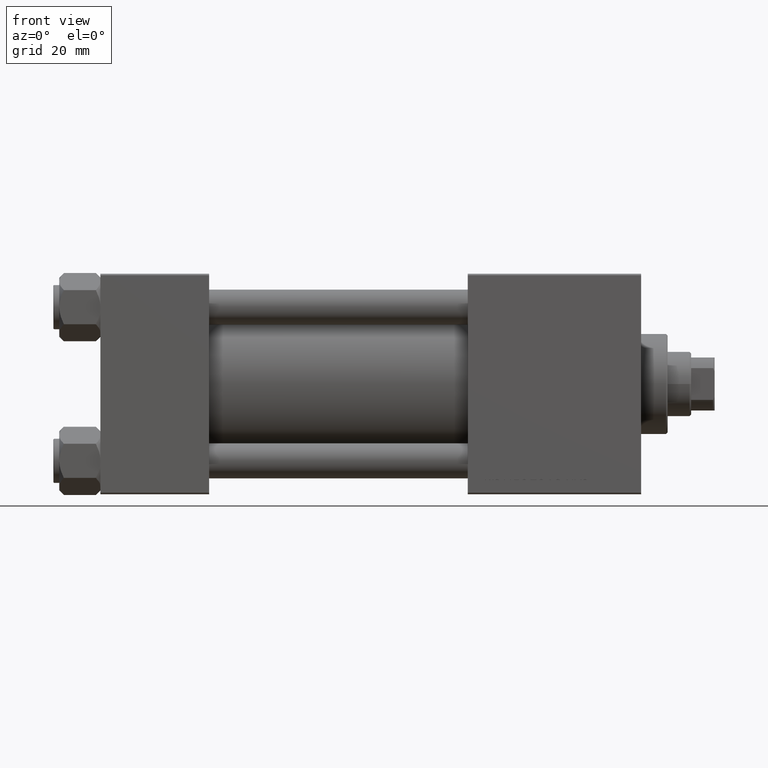
[diagram: clean part render]
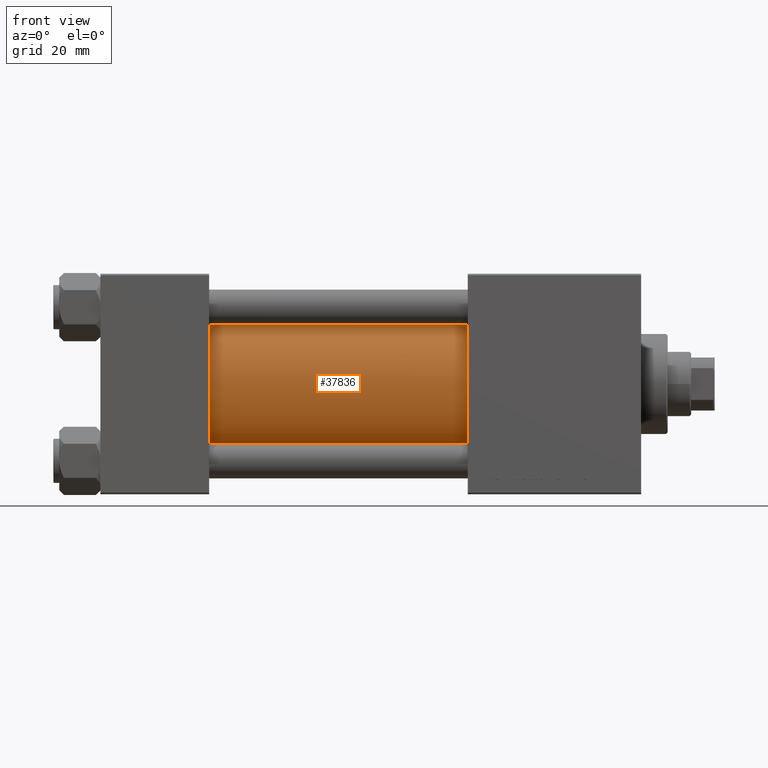
[diagram: same view with one face highlighted and labeled with its STEP entity id]
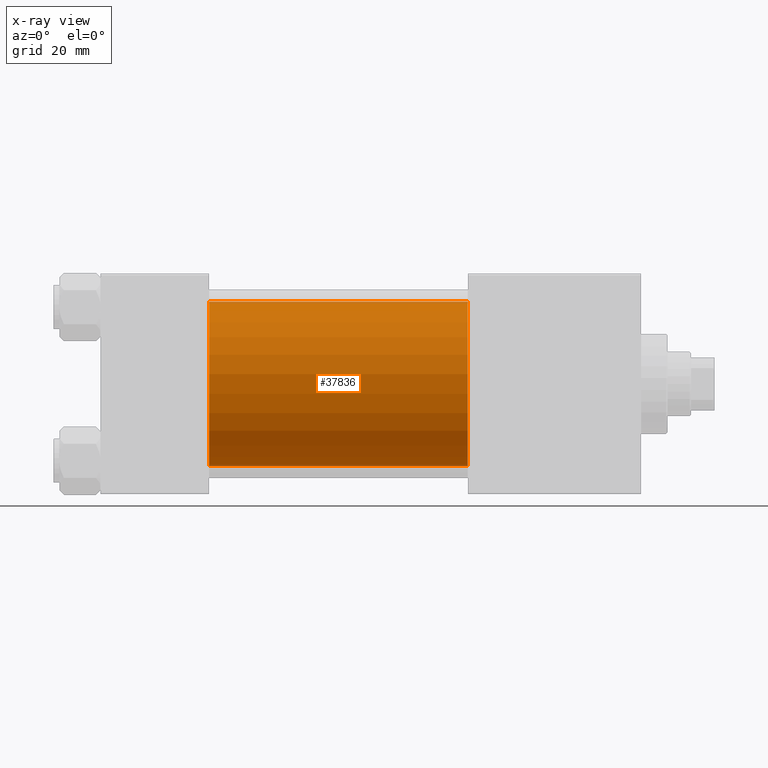
[diagram: x-ray of the same camera — body ghosted, the highlighted face saturated]
A machine part, front view. The second image highlights one B-rep face of the part: STEP entity #37836.
The next image is the same camera in x-ray: the body ghosted, the highlighted face saturated — about 2% of this face is hidden behind the body in this view.
In plain terms, the highlighted cylindrical surface (partial cylindrical patch) has radius 28 mm, axis along (-1, -0, -0).
Its self-contained STEP definition (entity closure, byte-faithful):
#349 = DIRECTION ( 'NONE',  ( 1.000000000000000000, 0.000000000000000000, 0.000000000000000000 ) ) ;
#914 = AXIS2_PLACEMENT_3D ( 'NONE', #39529, #12255, #39793 ) ;
#1054 = DIRECTION ( 'NONE',  ( 0.000000000000000000, 0.000000000000000000, 1.000000000000000000 ) ) ;
#2196 = AXIS2_PLACEMENT_3D ( 'NONE', #20617, #349, #20876 ) ;
#2839 = ORIENTED_EDGE ( 'NONE', *, *, #42936, .F. ) ;
#3073 = CARTESIAN_POINT ( 'NONE',  ( 125.0000000000000000, -2.602085213965210642E-15, 28.00000000000000000 ) ) ;
#4175 = CARTESIAN_POINT ( 'NONE',  ( 125.0000000000000000, -2.602085213965210642E-15, 0.000000000000000000 ) ) ;
#5545 = VERTEX_POINT ( 'NONE', #3073 ) ;
#7730 = VERTEX_POINT ( 'NONE', #38292 ) ;
#8336 = CYLINDRICAL_SURFACE ( 'NONE', #18829, 28.00000000000000000 ) ;
#9668 = CIRCLE ( 'NONE', #2196, 28.00000000000000000 ) ;
#11708 = FACE_OUTER_BOUND ( 'NONE', #45761, .T. ) ;
#12255 = DIRECTION ( 'NONE',  ( 1.000000000000000000, -0.000000000000000000, 0.000000000000000000 ) ) ;
#12887 = LINE ( 'NONE', #19923, #39690 ) ;
#14570 = ORIENTED_EDGE ( 'NONE', *, *, #14963, .F. ) ;
#14584 = CARTESIAN_POINT ( 'NONE',  ( 37.00000000000000711, -2.602085213965210642E-15, 28.00000000000000000 ) ) ;
#14963 = EDGE_CURVE ( 'NONE', #7730, #29667, #47136, .T. ) ;
#15972 = CARTESIAN_POINT ( 'NONE',  ( 125.0000000000000000, 8.269258236473784371E-16, -28.00000000000000000 ) ) ;
#18829 = AXIS2_PLACEMENT_3D ( 'NONE', #4175, #48069, #1054 ) ;
#19546 = EDGE_CURVE ( 'NONE', #22374, #29667, #23295, .T. ) ;
#19923 = CARTESIAN_POINT ( 'NONE',  ( 125.0000000000000000, -2.602085213965210642E-15, 28.00000000000000000 ) ) ;
#20617 = CARTESIAN_POINT ( 'NONE',  ( 125.0000000000000000, -2.602085213965210642E-15, 0.000000000000000000 ) ) ;
#20876 = DIRECTION ( 'NONE',  ( 0.000000000000000000, 0.000000000000000000, -1.000000000000000000 ) ) ;
#22247 = CARTESIAN_POINT ( 'NONE',  ( 37.00000000000000711, 8.269258236473784371E-16, -28.00000000000000000 ) ) ;
#22374 = VERTEX_POINT ( 'NONE', #14584 ) ;
#23295 = CIRCLE ( 'NONE', #914, 28.00000000000000000 ) ;
#27347 = ORIENTED_EDGE ( 'NONE', *, *, #19546, .T. ) ;
#29667 = VERTEX_POINT ( 'NONE', #22247 ) ;
#31490 = ORIENTED_EDGE ( 'NONE', *, *, #47145, .T. ) ;
#36018 = DIRECTION ( 'NONE',  ( -1.000000000000000000, -0.000000000000000000, -0.000000000000000000 ) ) ;
#37836 = ADVANCED_FACE ( 'NONE', ( #11708 ), #8336, .T. ) ;
#38292 = CARTESIAN_POINT ( 'NONE',  ( 125.0000000000000000, 8.269258236473784371E-16, -28.00000000000000000 ) ) ;
#39529 = CARTESIAN_POINT ( 'NONE',  ( 37.00000000000000711, -2.602085213965210642E-15, 0.000000000000000000 ) ) ;
#39690 = VECTOR ( 'NONE', #36018, 1000.000000000000000 ) ;
#39793 = DIRECTION ( 'NONE',  ( 0.000000000000000000, 0.000000000000000000, 1.000000000000000000 ) ) ;
#42936 = EDGE_CURVE ( 'NONE', #5545, #7730, #9668, .T. ) ;
#43509 = DIRECTION ( 'NONE',  ( -1.000000000000000000, -0.000000000000000000, -0.000000000000000000 ) ) ;
#44860 = VECTOR ( 'NONE', #43509, 1000.000000000000000 ) ;
#45761 = EDGE_LOOP ( 'NONE', ( #14570, #2839, #31490, #27347 ) ) ;
#47136 = LINE ( 'NONE', #15972, #44860 ) ;
#47145 = EDGE_CURVE ( 'NONE', #5545, #22374, #12887, .T. ) ;
#48069 = DIRECTION ( 'NONE',  ( -1.000000000000000000, -0.000000000000000000, -0.000000000000000000 ) ) ;